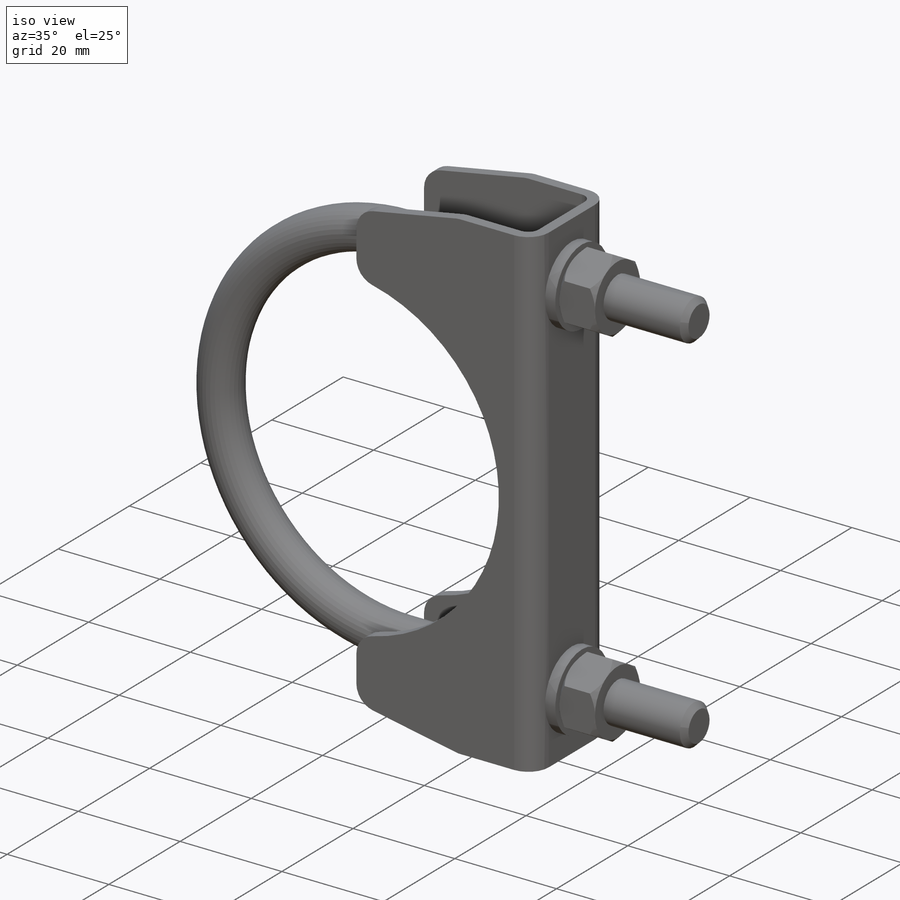
[diagram: iso view]
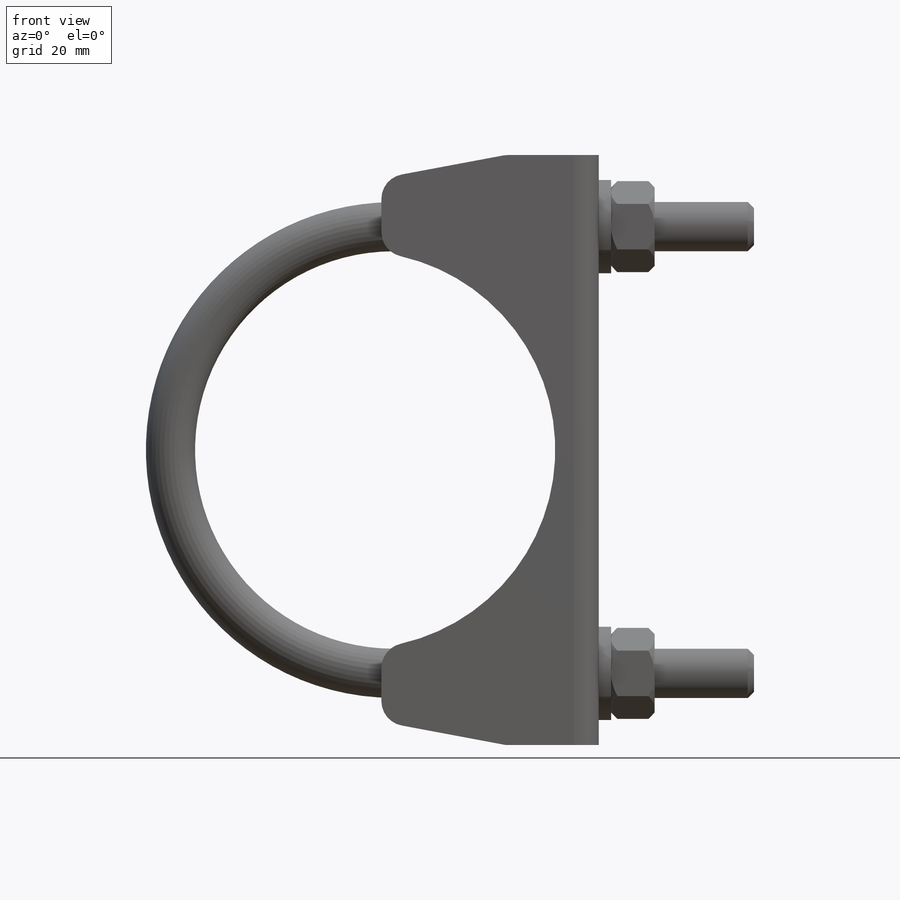
[diagram: front view]
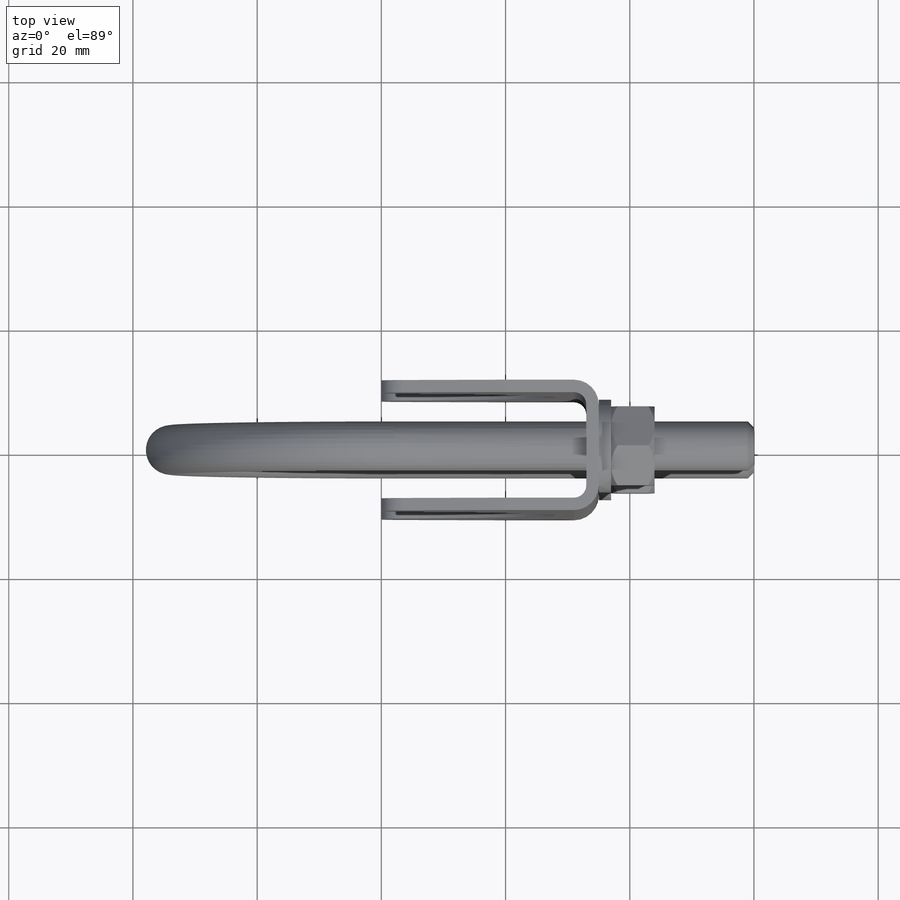
[diagram: top view]
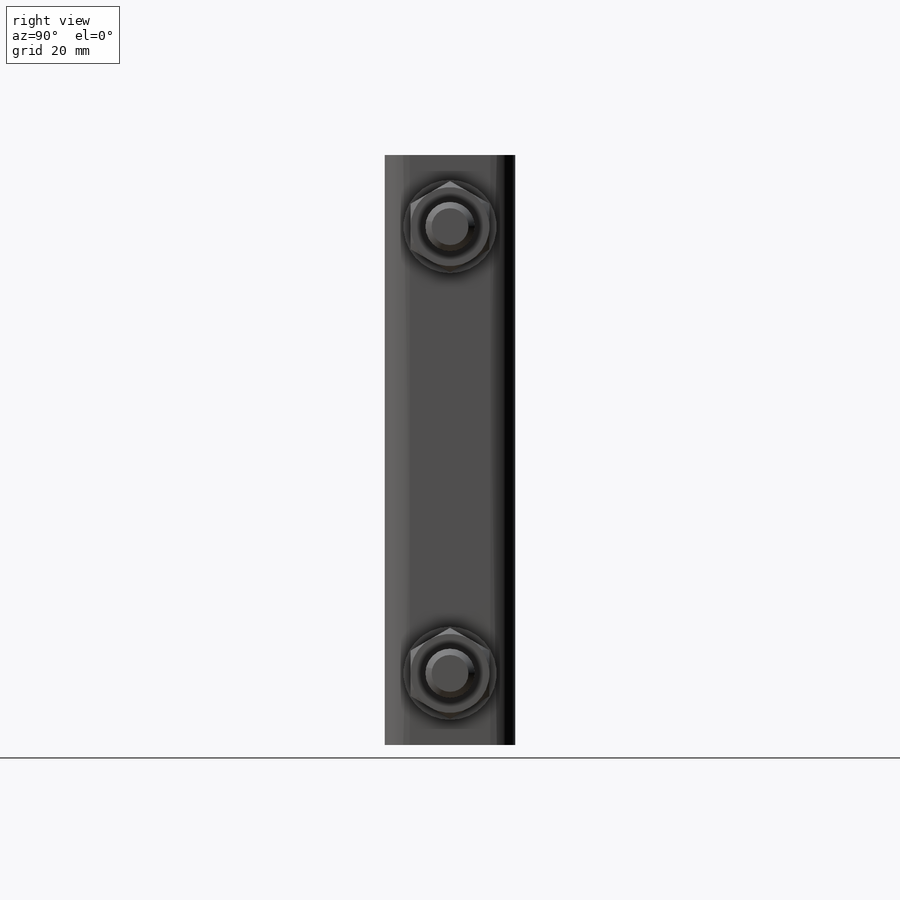
[diagram: right view]
SOLIDWORKS PART (.sldprt)
format: sldprt  version: not decoded by parser v0  size: 642,560 bytes
history: native  units: mm
features: sketch x9, extrude x4, thread x2, fillet x2, cut_revolve x2, material x1, sweep x1, chamfer x1, plane x1, mirror x1 (+11 scaffold rows collapsed)
feature tree (35):
  scaffold x11  (default folders/planes/origin — collapsed)
  material  "SAE 1045"
  sketch  "Esboço1"  dims[D2=32.0mm D3=90.0mm D1=~3.96875mm]
  sketch  "Esboço2"  dims[D1=7.9375mm]
  sweep  "Varredura1"
  thread  "Representação de rosca1"  Diameter=25mm  [1 undecoded]
  thread  "Representação de rosca2"  Diameter=25mm  [1 undecoded]
  chamfer  "Chanfro1"  Distance=1mm Angle=45deg
  plane  "Plano1"  Offset=25mm
  sketch  "Esboço3"  dims[c1.D4=4.25mm c1.D1=95.0mm c1.D2=21.0mm c1.D3=8.5mm c2.D4=12.0mm]
  extrude  "Ressalto-extrusão1"  Depth=2mm
  sketch  "Esboço4"  dims[c1.D1=32.0mm c1.D4=~27.043038mm c1.D5=28.0mm c2.D4=~27.998954mm c2.D6=~29.540179mm c2.D3=32.0mm c2.D1=35.0mm c2.D2=15.0mm c3.D3=12.0mm c3.D4=7.0mm c3.D5=12.0mm]
  extrude  "Ressalto-extrusão2"  Depth=2mm
  mirror  "Espelhar1"
  fillet  "Filete1"  Radius=2mm
  fillet  "Filete2"  Radius=4mm
  sketch  "Esboço5"  dims[D1=15.0mm D2=10.0mm]
  extrude  "Ressalto-extrusão3"  Depth=2mm
  sketch  "Esboço6"  dims[D1=12.7mm]
  extrude  "Ressalto-extrusão4"  Depth=7mm
  sketch  "Esboço7"  dims[D1=12.7mm D2=1.0mm]
  cut_revolve  "Corte-Revolução1"  Angle=360deg
  sketch  "Esboço8"  dims[D1=12.7mm D2=1.0mm]
  cut_revolve  "Corte-Revolução2"  Angle=360deg
  sketch  "Esboço9"  dims[D1=7.0mm]
decode coverage: 20 of 22 modeling features carry decoded parameters
note: ~ marks probable driven/reference dimensions
note: 2 parameter values undecoded
note: suppression state not decoded; provenance and decode notes live in map.json
